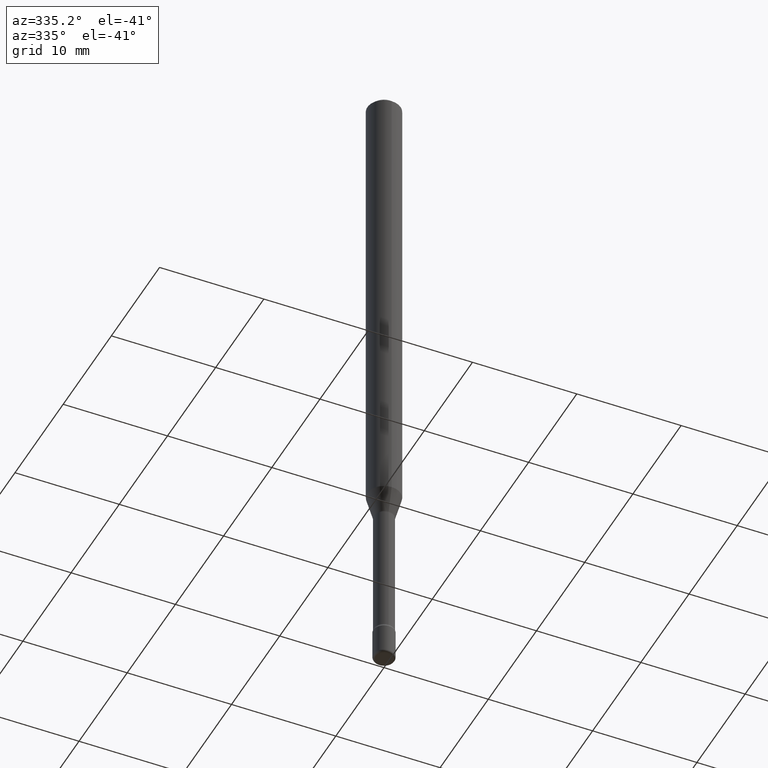
[diagram: clean part render]
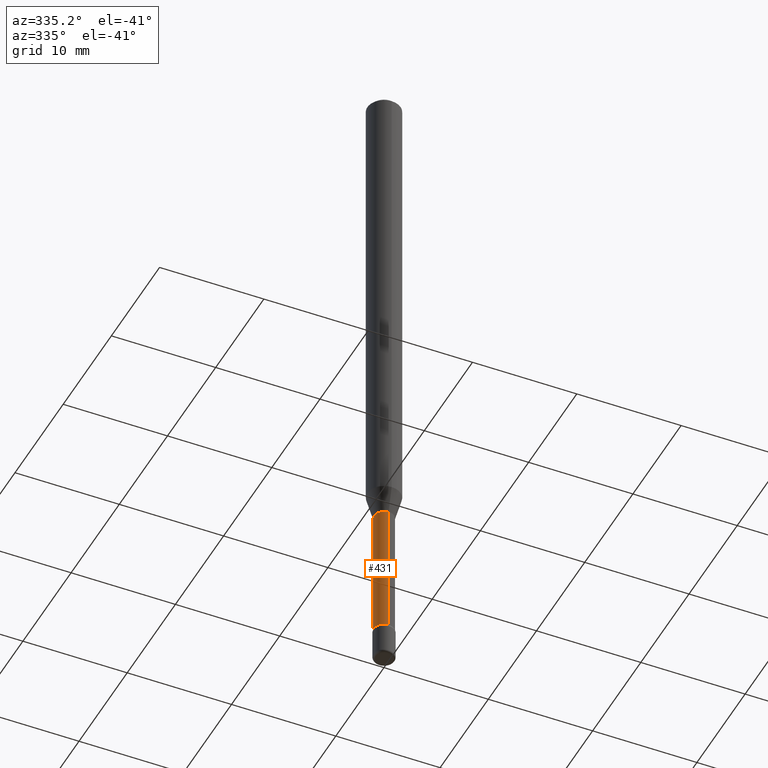
[diagram: same view with one face highlighted and labeled with its STEP entity id]
A machine part, auxiliary view. The second image highlights one B-rep face of the part: STEP entity #431.
In plain terms, the highlighted cylindrical surface (edge-blend (fillet) strip) has radius 0.955 mm, axis along (-0, 0, 1).
Its self-contained STEP definition (entity closure, byte-faithful):
#11 = CIRCLE ( 'NONE', #473, 0.03760000000000000842 ) ;
#17 = ORIENTED_EDGE ( 'NONE', *, *, #32, .F. ) ;
#32 = EDGE_CURVE ( 'NONE', #123, #86, #319, .T. ) ;
#63 = CIRCLE ( 'NONE', #185, 0.03760000000000005699 ) ;
#83 = LINE ( 'NONE', #254, #118 ) ;
#86 = VERTEX_POINT ( 'NONE', #312 ) ;
#90 = VERTEX_POINT ( 'NONE', #406 ) ;
#104 = FACE_OUTER_BOUND ( 'NONE', #536, .T. ) ;
#118 = VECTOR ( 'NONE', #346, 39.37007874015748143 ) ;
#123 = VERTEX_POINT ( 'NONE', #450 ) ;
#132 = DIRECTION ( 'NONE',  ( -6.982962677686265922E-15, -1.000000000000000000, 3.491621175237824120E-15 ) ) ;
#179 = CARTESIAN_POINT ( 'NONE',  ( 4.553219443960964936E-29, -6.501310595667589929E-15, -1.861974787463811065 ) ) ;
#185 = AXIS2_PLACEMENT_3D ( 'NONE', #255, #527, #219 ) ;
#187 = ORIENTED_EDGE ( 'NONE', *, *, #532, .T. ) ;
#196 = AXIS2_PLACEMENT_3D ( 'NONE', #529, #277, #132 ) ;
#219 = DIRECTION ( 'NONE',  ( -6.982962677686265922E-15, -1.000000000000000000, 0.000000000000000000 ) ) ;
#226 = ORIENTED_EDGE ( 'NONE', *, *, #384, .F. ) ;
#254 = CARTESIAN_POINT ( 'NONE',  ( -2.625593966810038003E-16, -0.03760000000000002923, 6.093583550801884071E-16 ) ) ;
#255 = CARTESIAN_POINT ( 'NONE',  ( 5.800080981349790489E-29, -8.281640804682186145E-15, -2.371861204020250025 ) ) ;
#277 = DIRECTION ( 'NONE',  ( -2.445371158952634318E-29, 3.491621175237824120E-15, 1.000000000000000000 ) ) ;
#278 = ORIENTED_EDGE ( 'NONE', *, *, #348, .T. ) ;
#302 = VECTOR ( 'NONE', #490, 39.37007874015748143 ) ;
#312 = CARTESIAN_POINT ( 'NONE',  ( 2.671640686458558589E-16, 0.03759999999999350667, -1.861974787463811065 ) ) ;
#319 = LINE ( 'NONE', #357, #302 ) ;
#346 = DIRECTION ( 'NONE',  ( -2.445371158952634038E-29, 3.491621175237824120E-15, 1.000000000000000000 ) ) ;
#348 = EDGE_CURVE ( 'NONE', #123, #90, #63, .T. ) ;
#354 = CYLINDRICAL_SURFACE ( 'NONE', #196, 0.03760000000000002923 ) ;
#357 = CARTESIAN_POINT ( 'NONE',  ( 2.671640686457978776E-16, 0.03760000000000002923, 3.467884427023037687E-16 ) ) ;
#358 = DIRECTION ( 'NONE',  ( -6.982962677686265922E-15, -1.000000000000000000, 0.000000000000000000 ) ) ;
#384 = EDGE_CURVE ( 'NONE', #86, #493, #11, .T. ) ;
#406 = CARTESIAN_POINT ( 'NONE',  ( -2.625593966809460162E-16, -0.03760000000000833509, -2.371861204020250025 ) ) ;
#431 = ADVANCED_FACE ( 'NONE', ( #104 ), #354, .T. ) ;
#450 = CARTESIAN_POINT ( 'NONE',  ( 2.756905814749770095E-16, 0.03759999999999177195, -2.371861204020250025 ) ) ;
#465 = CARTESIAN_POINT ( 'NONE',  ( -2.625593966809580957E-16, -0.03760000000000650322, -1.861974787463811065 ) ) ;
#473 = AXIS2_PLACEMENT_3D ( 'NONE', #179, #538, #358 ) ;
#490 = DIRECTION ( 'NONE',  ( -2.445371158952634038E-29, 3.491621175237824120E-15, 1.000000000000000000 ) ) ;
#493 = VERTEX_POINT ( 'NONE', #465 ) ;
#527 = DIRECTION ( 'NONE',  ( -2.445371158952634318E-29, 3.491621175237824120E-15, 1.000000000000000000 ) ) ;
#529 = CARTESIAN_POINT ( 'NONE',  ( -1.169113584055446105E-44, 1.669184350826100908E-30, 4.780733988912460139E-16 ) ) ;
#532 = EDGE_CURVE ( 'NONE', #90, #493, #83, .T. ) ;
#536 = EDGE_LOOP ( 'NONE', ( #17, #278, #187, #226 ) ) ;
#538 = DIRECTION ( 'NONE',  ( -2.445371158952634318E-29, 3.491621175237824120E-15, 1.000000000000000000 ) ) ;